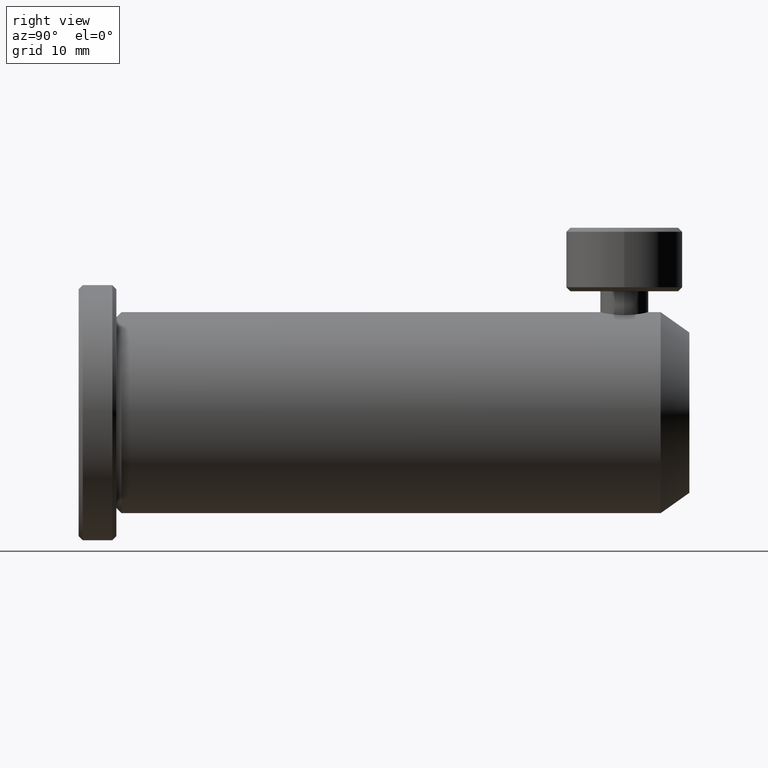
[diagram: clean part render]
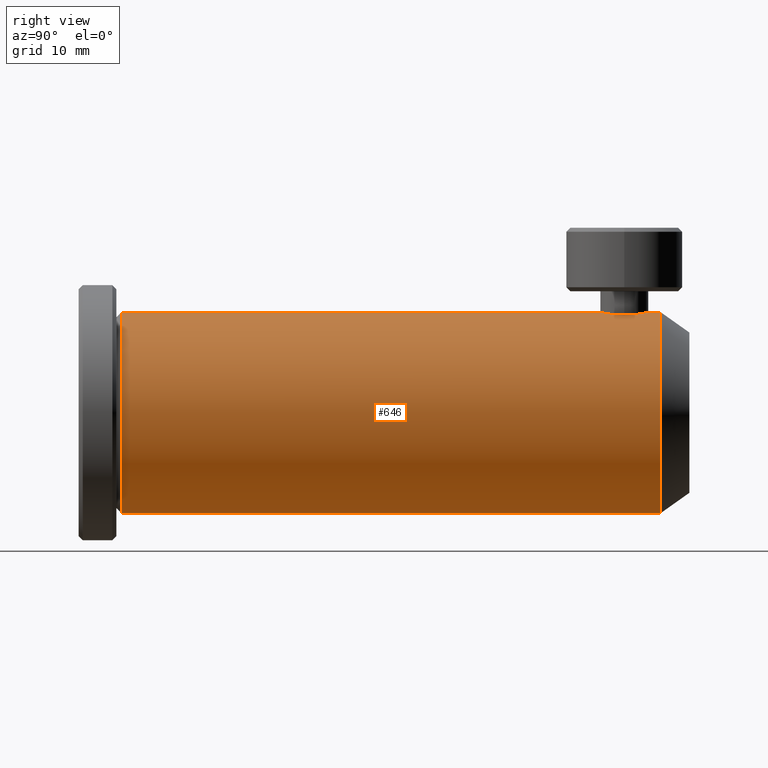
[diagram: same view with one face highlighted and labeled with its STEP entity id]
A machine part, right view. The second image highlights one B-rep face of the part: STEP entity #646.
In plain terms, the highlighted cylindrical surface (partial cylindrical patch) has radius 12.5066 mm, axis along (-0, 1, -0).
Its self-contained STEP definition (entity closure, byte-faithful):
#10 = DIRECTION ( 'NONE',  ( -0.0000000000000000000, 1.000000000000000000, -0.0000000000000000000 ) ) ;
#18 = CARTESIAN_POINT ( 'NONE',  ( -13.77690416192938400, 48.35116843547334800, 23.98748503881588000 ) ) ;
#19 = DIRECTION ( 'NONE',  ( -0.0000000000000000000, 1.000000000000000000, -0.0000000000000000000 ) ) ;
#59 = CIRCLE ( 'NONE', #508, 12.50662460249726300 ) ;
#64 = EDGE_CURVE ( 'NONE', #2997, #2094, #267, .T. ) ;
#172 = CARTESIAN_POINT ( 'NONE',  ( -15.44362970670083800, 45.65653786957187800, 24.28269077793341800 ) ) ;
#202 = CARTESIAN_POINT ( 'NONE',  ( -15.99772124523237900, 45.44749575104831500, 24.32981289233569900 ) ) ;
#213 = CARTESIAN_POINT ( 'NONE',  ( -14.39282510627846700, 46.51948495861572800, 24.12379884826479400 ) ) ;
#214 = CARTESIAN_POINT ( 'NONE',  ( -16.58074192017419400, 51.35116843547335500, 24.35262460249727200 ) ) ;
#243 = DIRECTION ( 'NONE',  ( -0.0000000000000000000, 1.000000000000000000, -0.0000000000000000000 ) ) ;
#267 = CIRCLE ( 'NONE', #2201, 12.50662460249726300 ) ;
#271 = EDGE_CURVE ( 'NONE', #2094, #2771, #1240, .T. ) ;
#279 = VERTEX_POINT ( 'NONE', #2009 ) ;
#293 = EDGE_CURVE ( 'NONE', #1074, #2771, #59, .T. ) ;
#317 = DIRECTION ( 'NONE',  ( 0.0000000000000000000, 0.0000000000000000000, 1.000000000000000000 ) ) ;
#399 = ORIENTED_EDGE ( 'NONE', *, *, #1625, .F. ) ;
#416 = VECTOR ( 'NONE', #243, 1000.000000000000000 ) ;
#447 = ORIENTED_EDGE ( 'NONE', *, *, #293, .F. ) ;
#452 = CARTESIAN_POINT ( 'NONE',  ( -16.77690416192938400, 10.85402768764679000, 24.35262460249726500 ) ) ;
#503 = ORIENTED_EDGE ( 'NONE', *, *, #271, .T. ) ;
#508 = AXIS2_PLACEMENT_3D ( 'NONE', #1715, #10, #317 ) ;
#533 = CARTESIAN_POINT ( 'NONE',  ( -15.99547646154485900, 51.25429409656808100, 24.32968491763672200 ) ) ;
#646 = ADVANCED_FACE ( 'NONE', ( #3482 ), #2757, .T. ) ;
#704 = DIRECTION ( 'NONE',  ( -0.0000000000000000000, 1.000000000000000000, -0.0000000000000000000 ) ) ;
#740 = DIRECTION ( 'NONE',  ( -0.0000000000000000000, 1.000000000000000000, -0.0000000000000000000 ) ) ;
#751 = CARTESIAN_POINT ( 'NONE',  ( -16.77690416192938400, 52.87733255234846300, -0.6606246024972641800 ) ) ;
#756 = CARTESIAN_POINT ( 'NONE',  ( -16.77690416192938400, 51.35116843547334800, 24.35262460249726900 ) ) ;
#787 = CARTESIAN_POINT ( 'NONE',  ( -13.93071742062228300, 49.31970155875707500, 24.02470628136472900 ) ) ;
#866 = CARTESIAN_POINT ( 'NONE',  ( -16.77690416192938400, 10.85402768764679000, -0.6606246024972641800 ) ) ;
#963 = CARTESIAN_POINT ( 'NONE',  ( -13.77690416192938500, 48.15463347015593600, 23.98748503881588300 ) ) ;
#980 = CARTESIAN_POINT ( 'NONE',  ( -15.80671340999985300, 45.50557806359515900, 24.31626977189224400 ) ) ;
#996 = CARTESIAN_POINT ( 'NONE',  ( -16.77690416192938400, 45.35116843547334000, 24.35262460249726500 ) ) ;
#1038 = CARTESIAN_POINT ( 'NONE',  ( -14.37826915767327100, 50.19539463803172200, 24.12369809686237000 ) ) ;
#1048 = CARTESIAN_POINT ( 'NONE',  ( -13.79667672050339000, 48.74718260283376000, 23.99241822363352800 ) ) ;
#1058 = EDGE_CURVE ( 'NONE', #2997, #1949, #2380, .T. ) ;
#1074 = VERTEX_POINT ( 'NONE', #2242 ) ;
#1167 = CARTESIAN_POINT ( 'NONE',  ( -13.93114311660579200, 47.38173428187639000, 24.02480118013769300 ) ) ;
#1235 = DIRECTION ( 'NONE',  ( -0.0000000000000000000, 1.000000000000000000, -0.0000000000000000000 ) ) ;
#1240 = LINE ( 'NONE', #866, #3268 ) ;
#1338 = CARTESIAN_POINT ( 'NONE',  ( -16.77690416192938400, -14.21383156452665000, 24.35262460249726500 ) ) ;
#1342 = CARTESIAN_POINT ( 'NONE',  ( -15.44624908779443700, 51.04705402353430100, 24.28296478403334300 ) ) ;
#1345 = VERTEX_POINT ( 'NONE', #18 ) ;
#1516 = CARTESIAN_POINT ( 'NONE',  ( -13.79603029263558300, 47.95942237379966900, 23.99225975643829000 ) ) ;
#1567 = AXIS2_PLACEMENT_3D ( 'NONE', #2664, #1235, #2407 ) ;
#1595 = CARTESIAN_POINT ( 'NONE',  ( -16.57785330784489000, 45.35116843547334000, 24.35262460249726100 ) ) ;
#1625 = EDGE_CURVE ( 'NONE', #1345, #279, #2086, .T. ) ;
#1655 = CARTESIAN_POINT ( 'NONE',  ( -15.27051895870360500, 50.95287502741852100, 24.26265152329844800 ) ) ;
#1715 = CARTESIAN_POINT ( 'NONE',  ( -16.77690416192938400, 52.87733255234846300, 11.84600000000000000 ) ) ;
#1718 = ORIENTED_EDGE ( 'NONE', *, *, #1058, .F. ) ;
#1775 = ORIENTED_EDGE ( 'NONE', *, *, #64, .T. ) ;
#1848 = CARTESIAN_POINT ( 'NONE',  ( -16.38227192160633900, 45.37078146884536500, 24.34787888852779900 ) ) ;
#1849 = CARTESIAN_POINT ( 'NONE',  ( -13.77690416192938500, 48.54760015671368500, 23.98748503881588300 ) ) ;
#1886 = CARTESIAN_POINT ( 'NONE',  ( -16.77690416192938400, -14.21383156452665000, 11.84600000000000000 ) ) ;
#1936 = CARTESIAN_POINT ( 'NONE',  ( -14.79550513255597200, 50.61229933147639300, 24.19547902575552100 ) ) ;
#1942 = ORIENTED_EDGE ( 'NONE', *, *, #2177, .F. ) ;
#1945 = CARTESIAN_POINT ( 'NONE',  ( -16.77690416192938400, 10.85402768764679000, 24.35262460249726500 ) ) ;
#1949 = VERTEX_POINT ( 'NONE', #3365 ) ;
#2009 = CARTESIAN_POINT ( 'NONE',  ( -16.77690416192938400, 51.35116843547334800, 24.35262460249726900 ) ) ;
#2082 = ORIENTED_EDGE ( 'NONE', *, *, #2091, .F. ) ;
#2086 = B_SPLINE_CURVE_WITH_KNOTS ( 'NONE', 3,
 ( #3210, #1849, #1048, #2202, #787, #3042, #1038, #1936, #3526, #1655, #1342, #3295, #533, #2742, #214, #756 ),
 .UNSPECIFIED., .F., .F.,
 ( 4, 2, 2, 2, 2, 2, 2, 4 ),
 ( 0.004708133516923690200, 0.005296341045966310200, 0.005884548575008929200, 0.007060963633094169900, 0.007649171162136787300, 0.008237378691179405400, 0.008825586220222014100, 0.009413793749264621000 ),
 .UNSPECIFIED. ) ;
#2091 = EDGE_CURVE ( 'NONE', #1949, #1345, #2296, .T. ) ;
#2094 = VERTEX_POINT ( 'NONE', #2656 ) ;
#2110 = CARTESIAN_POINT ( 'NONE',  ( -13.77690416192938400, 48.35116843547334800, 23.98748503881588000 ) ) ;
#2177 = EDGE_CURVE ( 'NONE', #279, #1074, #2530, .T. ) ;
#2201 = AXIS2_PLACEMENT_3D ( 'NONE', #1886, #740, #3233 ) ;
#2202 = CARTESIAN_POINT ( 'NONE',  ( -13.87375671712969800, 49.13239678693771900, 24.01107156492711400 ) ) ;
#2242 = CARTESIAN_POINT ( 'NONE',  ( -16.77690416192938400, 52.87733255234846300, 24.35262460249726500 ) ) ;
#2296 = B_SPLINE_CURVE_WITH_KNOTS ( 'NONE', 3,
 ( #996, #1595, #1848, #202, #980, #172, #2677, #2401, #3513, #2417, #213, #3333, #2716, #1167, #2333, #1516, #963, #2110 ),
 .UNSPECIFIED., .F., .F.,
 ( 4, 2, 2, 2, 2, 2, 2, 2, 4 ),
 ( 0.0000000000000000000, 0.0005885166896154612800, 0.001177033379230922600, 0.001765550068846383700, 0.002354066758461845100, 0.002942583448077306500, 0.003531100137692767500, 0.004119616827308229300, 0.004708133516923690200 ),
 .UNSPECIFIED. ) ;
#2333 = CARTESIAN_POINT ( 'NONE',  ( -13.87320317650571300, 47.57168489573371100, 24.01093960867708800 ) ) ;
#2380 = LINE ( 'NONE', #1945, #416 ) ;
#2401 = CARTESIAN_POINT ( 'NONE',  ( -14.94590430181606200, 45.96667342631973700, 24.21895798750637100 ) ) ;
#2407 = DIRECTION ( 'NONE',  ( 0.0000000000000000000, 0.0000000000000000000, 1.000000000000000000 ) ) ;
#2417 = CARTESIAN_POINT ( 'NONE',  ( -14.51673513396067400, 46.36883407828873500, 24.14749770774939500 ) ) ;
#2530 = LINE ( 'NONE', #452, #3535 ) ;
#2656 = CARTESIAN_POINT ( 'NONE',  ( -16.77690416192938400, -14.21383156452665000, -0.6606246024972641800 ) ) ;
#2664 = CARTESIAN_POINT ( 'NONE',  ( -16.77690416192938400, 10.85402768764679000, 11.84600000000000000 ) ) ;
#2677 = CARTESIAN_POINT ( 'NONE',  ( -15.27154643878212400, 45.74880891731019300, 24.26278492902625300 ) ) ;
#2716 = CARTESIAN_POINT ( 'NONE',  ( -14.08088682120798100, 47.02088688490935900, 24.05882295830631500 ) ) ;
#2742 = CARTESIAN_POINT ( 'NONE',  ( -16.38162019664870100, 51.33152385753744800, 24.34787061845349900 ) ) ;
#2757 = CYLINDRICAL_SURFACE ( 'NONE', #1567, 12.50662460249726300 ) ;
#2771 = VERTEX_POINT ( 'NONE', #751 ) ;
#2853 = EDGE_LOOP ( 'NONE', ( #1775, #503, #447, #1942, #399, #2082, #1718 ) ) ;
#2997 = VERTEX_POINT ( 'NONE', #1338 ) ;
#3042 = CARTESIAN_POINT ( 'NONE',  ( -14.15744916403990000, 49.86569708267424500, 24.07621427805916900 ) ) ;
#3210 = CARTESIAN_POINT ( 'NONE',  ( -13.77690416192938400, 48.35116843547334800, 23.98748503881588000 ) ) ;
#3233 = DIRECTION ( 'NONE',  ( 0.0000000000000000000, 0.0000000000000000000, 1.000000000000000000 ) ) ;
#3268 = VECTOR ( 'NONE', #19, 1000.000000000000000 ) ;
#3295 = CARTESIAN_POINT ( 'NONE',  ( -15.80845106065386200, 51.19731330544495800, 24.31639833189927900 ) ) ;
#3333 = CARTESIAN_POINT ( 'NONE',  ( -14.17354580636024700, 46.84736573050340500, 24.07918040308953800 ) ) ;
#3365 = CARTESIAN_POINT ( 'NONE',  ( -16.77690416192938400, 45.35116843547334000, 24.35262460249726500 ) ) ;
#3482 = FACE_OUTER_BOUND ( 'NONE', #2853, .T. ) ;
#3513 = CARTESIAN_POINT ( 'NONE',  ( -14.79232840064647500, 46.09296725170075600, 24.19495416367236700 ) ) ;
#3526 = CARTESIAN_POINT ( 'NONE',  ( -14.94619837656832600, 50.73582562226437900, 24.21899267594435700 ) ) ;
#3535 = VECTOR ( 'NONE', #704, 1000.000000000000000 ) ;